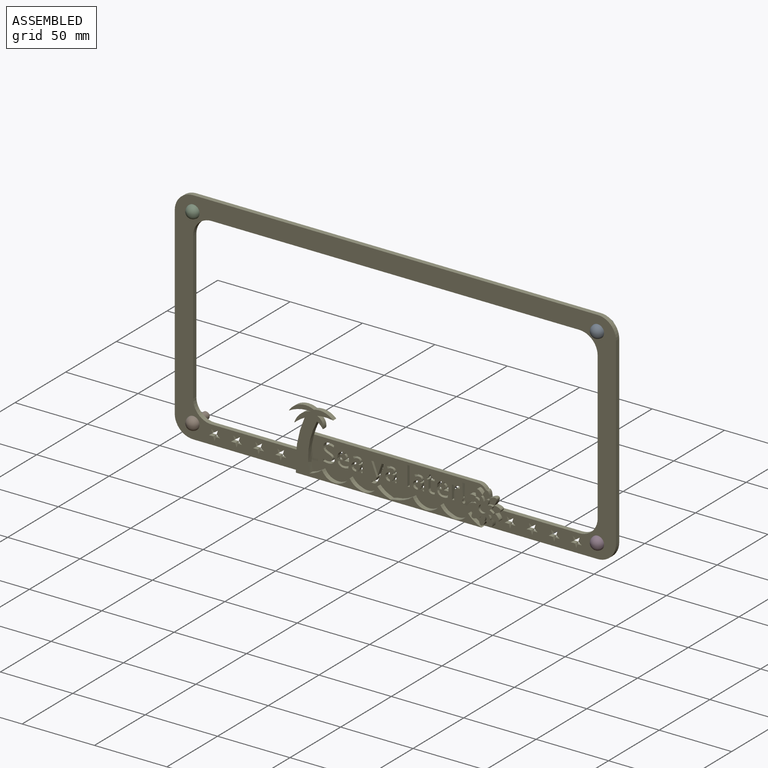
[diagram: assembled view]
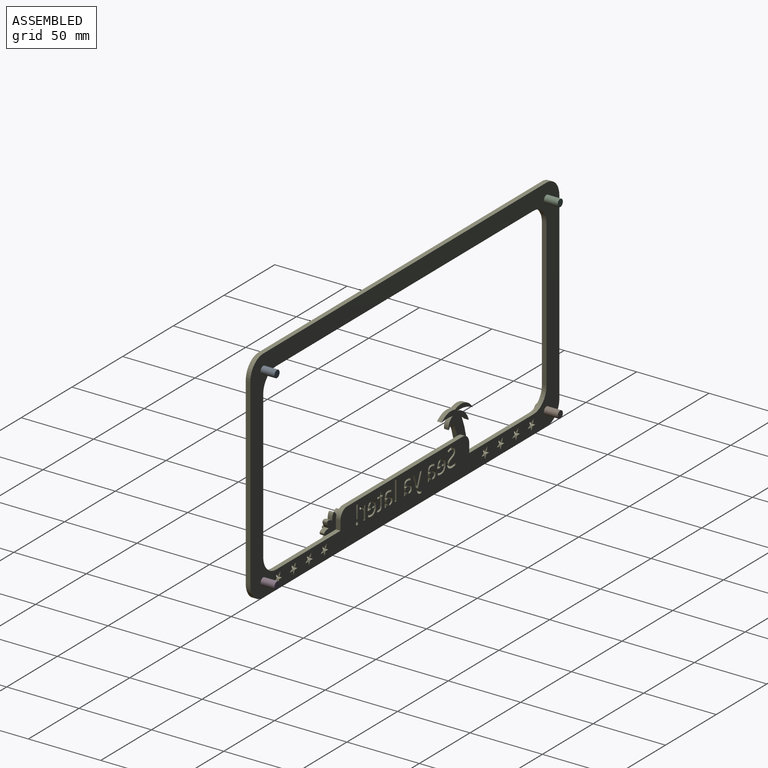
[diagram: assembled view, second angle]
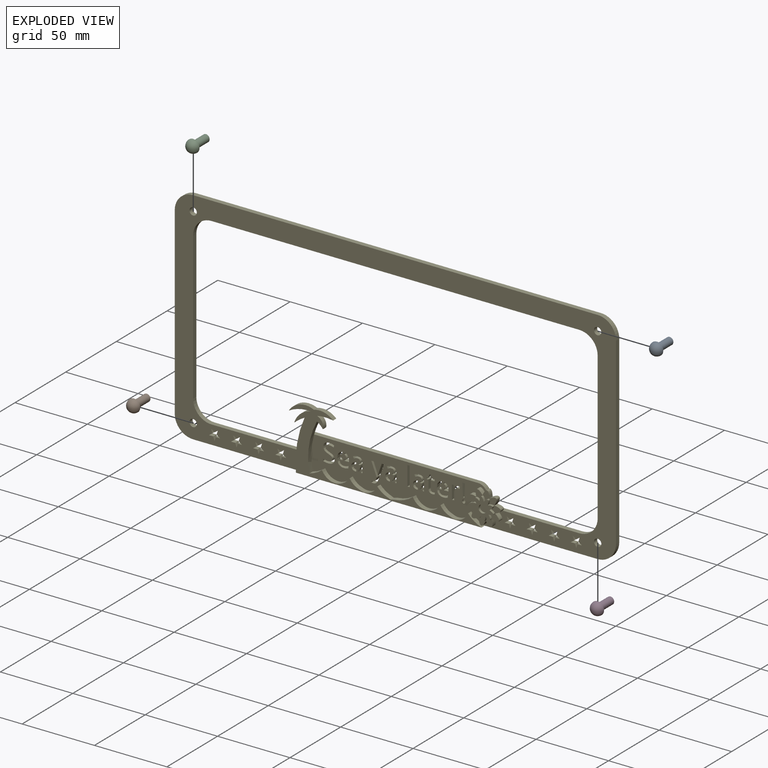
[diagram: exploded view]
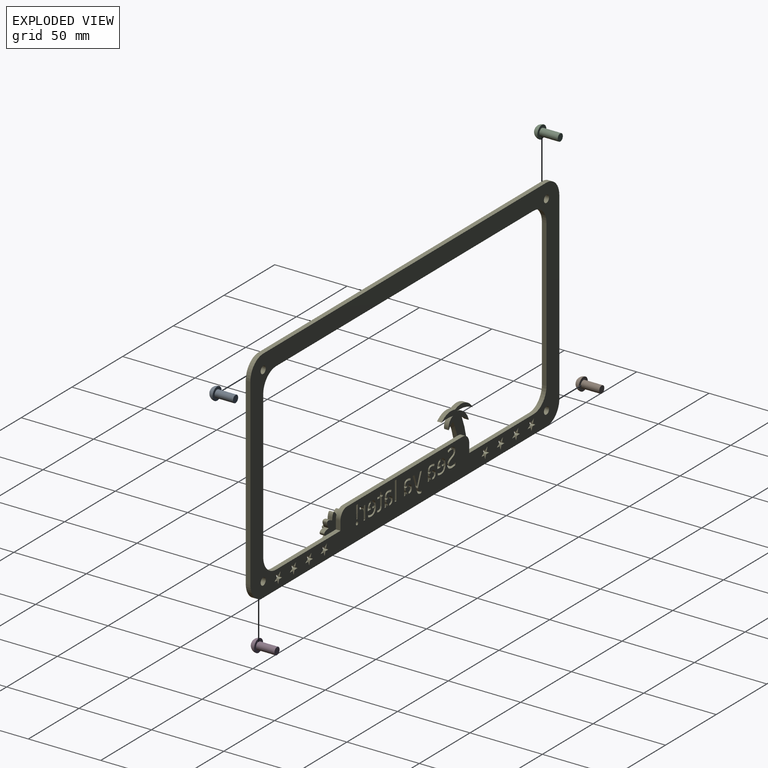
[diagram: exploded view, second angle]
ASSEMBLY  parts=5 mates=4
PART A: 4 faces, bbox 8.9x8.9x17.1 mm
  f0: plane 8.89x8.89mm, normal (0,0,-1), area 41.8mm2, adj f1,f2
  f1: sphere r=4.45mm, area 124.1mm2, adj f0
  f2: cylinder r=2.54mm len=12.7mm, axis (0,0,1), area 202.7mm2, adj f0,f3
  f3: plane 5.08x5.08mm, normal (0,0,-1), area 20.3mm2, adj f2
PART B: same geometry as A
PART C: same geometry as A
PART D: same geometry as A
PART E: 404 faces, bbox 304.8x8x152.4 mm
  f0: plane 304.8x152.4mm, normal (0,-1,0), area 11294mm2, adj f2,f3,f4,f5,f6,f7,f8,f9
  f1: plane 304.8x152.4mm, normal (0,1,0), area 12012.3mm2, adj f3,f4,f5,f6,f7,f8,f9,f10
  f2: cylinder r=50.8mm len=33.85mm, axis (0,1,0), area 110.9mm2, adj f0,f273,f276,f283,f284
  f3: plane 3.22x3.18mm, normal (0,0,1), area 10.2mm2, adj f0,f1,f181,f271
  f4: extruded ~3.18x2.16mm, area 7.9mm2, adj f0,f1,f182,f270
  f5: plane 3.18x1.42mm, normal (0.04,0,-1), area 4.5mm2, adj f0,f1,f165,f261
  f6: extruded ~3.18x0.03mm, area 0.1mm2, adj f0,f1,f170,f259
  f7: plane 3.18x1.58mm, normal (0.04,0,-1), area 5mm2, adj f0,f1,f146,f249
  f8: extruded ~3.18x0.19mm, area 0.6mm2, adj f0,f1,f151,f247
  f9: plane 3.18x1.39mm, normal (0.04,0,-1), area 4.4mm2, adj f0,f1,f46,f236
  f10: plane 3.24x3.18mm, normal (0,0,1), area 10.3mm2, adj f0,f1,f62,f224
  f11: extruded ~3.18x2.18mm, area 7.9mm2, adj f0,f1,f63,f223
  f12: plane 127x3.18mm, normal (1,0,0), area 403.2mm2, adj f0,f1,f13,f33
  f13: cylinder r=12.7mm len=12.7mm, axis (0,1,0), area 63.3mm2, adj f0,f1,f12,f14
  f14: plane 279.4x3.18mm, normal (0,0,1), area 887.1mm2, adj f0,f1,f13,f15
  f15: cylinder r=12.7mm len=12.7mm, axis (0,1,0), area 63.3mm2, adj f0,f1,f14,f16
  f16: plane 127x3.18mm, normal (-1,0,0), area 403.2mm2, adj f0,f1,f15,f17
  f17: cylinder r=12.7mm len=12.7mm, axis (0,1,0), area 63.3mm2, adj f0,f1,f16,f18
  f18: plane 279.4x6.35mm, normal (0,0,-1), area 1294.1mm2, adj f0,f1,f17,f33,f275,f283,f285
  f19: plane 63.5x3.18mm, normal (0,0,1), area 201.6mm2, adj f0,f1,f20,f32,f310
  f20: plane 6.35x3.18mm, normal (1,0,0), area 20.2mm2, adj f1,f19,f21,f310
  f21: cylinder r=6.35mm len=6.35mm, axis (0,1,0), area 31.7mm2, adj f0,f1,f20,f22,f310
  f22: plane 114.3x3.18mm, normal (0,0,1), area 362.9mm2, adj f0,f1,f21,f23,f273
  f23: cylinder r=6.35mm len=6.35mm, axis (0,1,0), area 31.7mm2, adj f1,f22,f24,f273
  f24: plane 6.35x3.18mm, normal (-1,0,0), area 20.2mm2, adj f1,f23,f25,f273
  f25: plane 63.5x3.18mm, normal (0,0,1), area 201.6mm2, adj f0,f1,f24,f26,f273
  f26: cylinder r=12.7mm len=12.7mm, axis (0,1,0), area 63.3mm2, adj f0,f1,f25,f27
  f27: plane 101.6x3.18mm, normal (1,0,0), area 322.6mm2, adj f0,f1,f26,f28
  f28: cylinder r=12.7mm len=12.7mm, axis (0,1,0), area 63.3mm2, adj f0,f1,f27,f29
  f29: plane 254x3.18mm, normal (0,0,-1), area 806.5mm2, adj f0,f1,f28,f30
  f30: cylinder r=12.7mm len=12.7mm, axis (0,1,0), area 63.3mm2, adj f0,f1,f29,f31
  f31: plane 101.6x3.18mm, normal (-1,0,0), area 322.6mm2, adj f0,f1,f30,f32
  f32: cylinder r=12.7mm len=12.7mm, axis (0,1,0), area 63.3mm2, adj f0,f1,f19,f31
  f33: cylinder r=12.7mm len=12.7mm, axis (0,1,0), area 63.3mm2, adj f0,f1,f12,f18
  f34: plane 3.18x1.35mm, normal (0.98,0,0.22), area 4.4mm2, adj f0,f1,f35,f52
  f35: plane 3.18x1.13mm, normal (0,0,1), area 3.6mm2, adj f0,f1,f34,f36
  f36: plane 6.44x3.18mm, normal (-1,0,0), area 20.5mm2, adj f0,f1,f35,f37
  f37: extruded ~3.18x2.41mm, area 8.3mm2, adj f0,f1,f36,f38
  f38: extruded ~3.18x2.55mm, area 8.6mm2, adj f0,f1,f37,f39
  f39: extruded ~3.18x1.67mm, area 5.4mm2, adj f0,f1,f38,f40
  f40: extruded ~3.18x1.56mm, area 5.3mm2, adj f0,f1,f39,f41
  f41: plane 3.18x1.16mm, normal (0.93,0,0.38), area 4mm2, adj f0,f1,f40,f42
  f42: extruded ~3.18x1.25mm, area 4.3mm2, adj f0,f1,f41,f43
  f43: extruded ~3.18x1.42mm, area 4.6mm2, adj f0,f1,f42,f44
  f44: extruded ~3.18x1.49mm, area 5.1mm2, adj f0,f1,f43,f45
  f45: extruded ~3.18x1.59mm, area 5.4mm2, adj f0,f1,f44,f46
  f46: plane 3.18x0.56mm, normal (1,0,0), area 1.8mm2, adj f0,f1,f9,f45
  f47: extruded ~3.31x3.18mm, area 15.5mm2, adj f0,f1,f48,f237
  f48: extruded ~3.18x2.07mm, area 7.2mm2, adj f0,f1,f47,f49
  f49: extruded ~3.18x2.19mm, area 7.5mm2, adj f0,f1,f48,f50
  f50: extruded ~3.18x0.33mm, area 1mm2, adj f0,f1,f49,f235
  f51: extruded ~3.18x1.41mm, area 5.9mm2, adj f0,f1,f52,f234
  f52: plane 3.18x0.07mm, normal (0,0,1), area 0.2mm2, adj f0,f1,f34,f51
  f53: extruded ~3.34x3.18mm, area 11.7mm2, adj f0,f1,f54,f66
  f54: extruded ~3.18x1.63mm, area 5.2mm2, adj f0,f1,f53,f55
  f55: extruded ~3.18x1.47mm, area 4.9mm2, adj f0,f1,f54,f56
  f56: plane 3.18x1.36mm, normal (-1,0,0), area 4.3mm2, adj f0,f1,f55,f57
  f57: extruded ~3.18x1.59mm, area 5.3mm2, adj f0,f1,f56,f58
  f58: extruded ~3.18x1.44mm, area 4.6mm2, adj f0,f1,f57,f59
  f59: extruded ~3.18x2.2mm, area 7.7mm2, adj f0,f1,f58,f60
  f60: extruded ~3.18x2.44mm, area 8.4mm2, adj f0,f1,f59,f61
  f61: plane 3.18x1.97mm, normal (0,0,1), area 6.2mm2, adj f0,f1,f60,f225
  f62: plane 3.18x0.94mm, normal (-1,0,0), area 3mm2, adj f0,f1,f10,f63
  f63: extruded ~3.18x3.11mm, area 10.7mm2, adj f0,f1,f11,f62
  f64: extruded ~3.18x2.44mm, area 9mm2, adj f0,f1,f65,f222
  f65: extruded ~3.62x3.18mm, area 12.3mm2, adj f0,f1,f64,f66
  f66: extruded ~3.55x3.18mm, area 12.2mm2, adj f0,f1,f53,f65
  f67: extruded ~3.18x0.87mm, area 3mm2, adj f0,f1,f68,f74
  f68: extruded ~3.18x0.89mm, area 3mm2, adj f0,f1,f67,f69
  f69: extruded ~3.18x0.81mm, area 2.8mm2, adj f0,f1,f68,f70
  f70: extruded ~3.18x0.81mm, area 2.9mm2, adj f0,f1,f69,f71
  f71: extruded ~3.18x0.88mm, area 3mm2, adj f0,f1,f70,f72
  f72: extruded ~3.18x0.87mm, area 3mm2, adj f0,f1,f71,f73
  f73: extruded ~3.18x0.81mm, area 2.9mm2, adj f0,f1,f72,f74
  f74: extruded ~3.18x0.81mm, area 2.8mm2, adj f0,f1,f67,f73
  f75: plane 3.18x1.01mm, normal (0,0,1), area 3.2mm2, adj f0,f1,f76,f78
  f76: plane 9.04x3.18mm, normal (-1,0,0.05), area 28.7mm2, adj f0,f1,f75,f77
  f77: plane 3.18x1.89mm, normal (0,0,-1), area 6mm2, adj f0,f1,f76,f78
  f78: plane 9.04x3.18mm, normal (1,0,0.05), area 28.7mm2, adj f0,f1,f75,f77
  f79: extruded ~3.18x1.11mm, area 3.5mm2, adj f0,f1,f80,f92
  f80: extruded ~3.18x1.61mm, area 5.4mm2, adj f0,f1,f79,f81
  f81: extruded ~3.18x1.42mm, area 6.1mm2, adj f0,f1,f80,f82
  f82: plane 3.18x0.07mm, normal (0,0,-1), area 0.2mm2, adj f0,f1,f81,f83
  f83: plane 3.18x1.73mm, normal (-1,0,-0.1), area 5.5mm2, adj f0,f1,f82,f84
  f84: plane 3.18x1.27mm, normal (0,0,-1), area 4mm2, adj f0,f1,f83,f85
  f85: plane 9.46x3.18mm, normal (1,0,0), area 30mm2, adj f0,f1,f84,f86
  f86: plane 3.18x1.55mm, normal (0,0,1), area 4.9mm2, adj f0,f1,f85,f87
  f87: plane 5.05x3.18mm, normal (-1,0,0), area 16mm2, adj f0,f1,f86,f88
  f88: extruded ~3.18x1.62mm, area 5.3mm2, adj f0,f1,f87,f89
  f89: extruded ~3.18x1.14mm, area 4.9mm2, adj f0,f1,f88,f90
  f90: extruded ~3.18x1.39mm, area 4.7mm2, adj f0,f1,f89,f91
  f91: extruded ~3.18x1.03mm, area 3.3mm2, adj f0,f1,f90,f92
  f92: plane 3.18x1.43mm, normal (-0.99,0,0.13), area 4.6mm2, adj f0,f1,f79,f91
  f93: extruded ~3.18x0.71mm, area 2.3mm2, adj f0,f1,f94,f111
  f94: extruded ~3.18x1.09mm, area 3.9mm2, adj f0,f1,f93,f95
  f95: extruded ~3.18x1.26mm, area 4.3mm2, adj f0,f1,f94,f96
  f96: plane 5.46x3.18mm, normal (-1,0,0), area 17.3mm2, adj f0,f1,f95,f97
  f97: plane 3.18x2.73mm, normal (0,0,1), area 8.7mm2, adj f0,f1,f96,f98
  f98: plane 3.18x1.2mm, normal (-1,0,0), area 3.8mm2, adj f0,f1,f97,f99
  f99: plane 3.18x2.73mm, normal (0,0,-1), area 8.7mm2, adj f0,f1,f98,f100
  f100: plane 3.18x2.17mm, normal (-1,0,0), area 6.9mm2, adj f0,f1,f99,f101
  f101: plane 3.18x0.92mm, normal (0,0,-1), area 2.9mm2, adj f0,f1,f100,f102
  f102: plane 3.18x2.01mm, normal (0.96,0,-0.29), area 6.7mm2, adj f0,f1,f101,f103
  f103: plane 3.18x1.35mm, normal (0.42,0,-0.91), area 4.7mm2, adj f0,f1,f102,f104
  f104: plane 3.18x0.74mm, normal (1,0,0), area 2.4mm2, adj f0,f1,f103,f105
  f105: plane 3.18x1.34mm, normal (0,0,1), area 4.2mm2, adj f0,f1,f104,f106
  f106: plane 5.5x3.18mm, normal (1,0,0), area 17.5mm2, adj f0,f1,f105,f107
  f107: extruded ~3.18x2.92mm, area 14.7mm2, adj f0,f1,f106,f108
  f108: extruded ~3.18x0.92mm, area 2.9mm2, adj f0,f1,f107,f109
  f109: extruded ~3.18x0.67mm, area 2.2mm2, adj f0,f1,f108,f110
  f110: plane 3.18x1.19mm, normal (-1,0,0), area 3.8mm2, adj f0,f1,f109,f111
  f111: extruded ~3.18x0.61mm, area 2mm2, adj f0,f1,f93,f110
  f112: plane 3.18x1.55mm, normal (0,0,1), area 4.9mm2, adj f0,f1,f113,f115
  f113: plane 13.4x3.18mm, normal (-1,0,0), area 42.6mm2, adj f0,f1,f112,f114
  f114: plane 3.18x1.55mm, normal (0,0,-1), area 4.9mm2, adj f0,f1,f113,f115
  f115: plane 13.4x3.18mm, normal (1,0,0), area 42.6mm2, adj f0,f1,f112,f114
  f116: plane 3.18x1.66mm, normal (0,0,-1), area 5.3mm2, adj f0,f1,f117,f133
  f117: plane 9.49x3.81mm, normal (0.93,0,0.37), area 32.5mm2, adj f0,f1,f116,f118
  f118: plane 3.18x1.26mm, normal (0.93,0,-0.37), area 4.3mm2, adj f0,f1,f117,f119
  f119: extruded ~3.18x1.26mm, area 4.9mm2, adj f0,f1,f118,f120
  f120: extruded ~3.18x1.26mm, area 4.3mm2, adj f0,f1,f119,f121
  f121: extruded ~3.18x1.03mm, area 3.3mm2, adj f0,f1,f120,f122
  f122: plane 3.18x1.23mm, normal (1,0,0), area 3.9mm2, adj f0,f1,f121,f123
  f123: extruded ~3.18x1.28mm, area 4.1mm2, adj f0,f1,f122,f124
  f124: extruded ~3.18x2.02mm, area 6.9mm2, adj f0,f1,f123,f125
  f125: extruded ~3.18x2.25mm, area 8.5mm2, adj f0,f1,f124,f126
  f126: plane 10.77x4.08mm, normal (-0.94,0,0.35), area 36.5mm2, adj f0,f1,f125,f127
  f127: plane 3.18x1.67mm, normal (0,0,-1), area 5.3mm2, adj f0,f1,f126,f128
  f128: plane 5.37x3.18mm, normal (0.94,0,-0.34), area 18.1mm2, adj f0,f1,f127,f129
  f129: extruded ~3.18x1.4mm, area 4.7mm2, adj f0,f1,f128,f130
  f130: extruded ~3.18x1.19mm, area 3.9mm2, adj f0,f1,f129,f131
  f131: plane 3.18x0.07mm, normal (0,0,-1), area 0.2mm2, adj f0,f1,f130,f132
  f132: extruded ~3.18x2.57mm, area 8.6mm2, adj f0,f1,f131,f133
  f133: plane 5.38x3.18mm, normal (-0.93,0,-0.35), area 18.3mm2, adj f0,f1,f116,f132
  f134: plane 3.18x1.35mm, normal (0.98,0,0.22), area 4.4mm2, adj f0,f1,f135,f152
  f135: plane 3.18x1.13mm, normal (0,0,1), area 3.6mm2, adj f0,f1,f134,f136
  f136: plane 6.44x3.18mm, normal (-1,0,0), area 20.5mm2, adj f0,f1,f135,f137
  f137: extruded ~3.18x2.41mm, area 8.3mm2, adj f0,f1,f136,f138
  f138: extruded ~3.18x2.55mm, area 8.6mm2, adj f0,f1,f137,f139
  f139: extruded ~3.18x1.67mm, area 5.4mm2, adj f0,f1,f138,f140
  f140: extruded ~3.18x1.56mm, area 5.3mm2, adj f0,f1,f139,f141
  f141: plane 3.18x1.16mm, normal (0.93,0,0.38), area 4mm2, adj f0,f1,f140,f142
  f142: extruded ~3.18x1.25mm, area 4.3mm2, adj f0,f1,f141,f143
  f143: extruded ~3.18x1.42mm, area 4.6mm2, adj f0,f1,f142,f144
  f144: extruded ~3.18x1.49mm, area 5.1mm2, adj f0,f1,f143,f145
  f145: extruded ~3.18x1.59mm, area 5.4mm2, adj f0,f1,f144,f146
  f146: plane 3.18x0.56mm, normal (1,0,0), area 1.8mm2, adj f0,f1,f7,f145
  f147: extruded ~3.18x3.12mm, area 14.9mm2, adj f0,f1,f148,f250
  f148: extruded ~3.18x2.07mm, area 7.2mm2, adj f0,f1,f147,f149
  f149: extruded ~3.18x2.19mm, area 7.5mm2, adj f0,f1,f148,f150
  f150: extruded ~3.18x0.14mm, area 0.4mm2, adj f0,f1,f149,f248
  f151: extruded ~3.18x1.41mm, area 5.9mm2, adj f0,f1,f8,f152
  f152: plane 3.18x0.07mm, normal (0,0,1), area 0.2mm2, adj f0,f1,f134,f151
  f153: plane 3.18x1.35mm, normal (0.98,0,0.22), area 4.4mm2, adj f0,f1,f154,f171
  f154: plane 3.18x1.13mm, normal (0,0,1), area 3.6mm2, adj f0,f1,f153,f155
  f155: plane 6.44x3.18mm, normal (-1,0,0), area 20.5mm2, adj f0,f1,f154,f156
  f156: extruded ~3.18x2.41mm, area 8.3mm2, adj f0,f1,f155,f157
  f157: extruded ~3.18x2.55mm, area 8.6mm2, adj f0,f1,f156,f158
  f158: extruded ~3.18x1.67mm, area 5.4mm2, adj f0,f1,f157,f159
  f159: extruded ~3.18x1.56mm, area 5.3mm2, adj f0,f1,f158,f160
  f160: plane 3.18x1.16mm, normal (0.93,0,0.38), area 4mm2, adj f0,f1,f159,f161
  f161: extruded ~3.18x1.25mm, area 4.3mm2, adj f0,f1,f160,f162
  f162: extruded ~3.18x1.42mm, area 4.6mm2, adj f0,f1,f161,f163
  f163: extruded ~3.18x1.49mm, area 5.1mm2, adj f0,f1,f162,f164
  f164: extruded ~3.18x1.59mm, area 5.4mm2, adj f0,f1,f163,f165
  f165: plane 3.18x0.56mm, normal (1,0,0), area 1.8mm2, adj f0,f1,f5,f164
  f166: extruded ~3.28x3.18mm, area 15.5mm2, adj f0,f1,f167,f262
  f167: extruded ~3.18x2.07mm, area 7.2mm2, adj f0,f1,f166,f168
  f168: extruded ~3.18x2.19mm, area 7.5mm2, adj f0,f1,f167,f169
  f169: extruded ~3.18x0.3mm, area 1mm2, adj f0,f1,f168,f260
  f170: extruded ~3.18x1.41mm, area 5.9mm2, adj f0,f1,f6,f171
  f171: plane 3.18x0.07mm, normal (0,0,1), area 0.2mm2, adj f0,f1,f153,f170
  f172: extruded ~3.34x3.18mm, area 11.7mm2, adj f0,f1,f173,f185
  f173: extruded ~3.18x1.63mm, area 5.2mm2, adj f0,f1,f172,f174
  f174: extruded ~3.18x1.47mm, area 4.9mm2, adj f0,f1,f173,f175
  f175: plane 3.18x1.36mm, normal (-1,0,0), area 4.3mm2, adj f0,f1,f174,f176
  f176: extruded ~3.18x1.59mm, area 5.3mm2, adj f0,f1,f175,f177
  f177: extruded ~3.18x1.44mm, area 4.6mm2, adj f0,f1,f176,f178
  f178: extruded ~3.18x2.2mm, area 7.7mm2, adj f0,f1,f177,f179
  f179: extruded ~3.18x2.44mm, area 8.4mm2, adj f0,f1,f178,f180
  f180: plane 3.18x1.82mm, normal (0,0,1), area 5.8mm2, adj f0,f1,f179,f272
  f181: plane 3.18x0.94mm, normal (-1,0,0), area 3mm2, adj f0,f1,f3,f182
  f182: extruded ~3.18x3.11mm, area 10.7mm2, adj f0,f1,f4,f181
  f183: extruded ~3.18x2.29mm, area 8.5mm2, adj f0,f1,f184,f269
  f184: extruded ~3.62x3.18mm, area 12.3mm2, adj f0,f1,f183,f185
  f185: extruded ~3.55x3.18mm, area 12.2mm2, adj f0,f1,f172,f184
  f186: extruded ~3.18x2.59mm, area 9.4mm2, adj f0,f1,f187,f211
  f187: extruded ~3.18x1.51mm, area 5mm2, adj f0,f1,f186,f188
  f188: extruded ~3.18x1.12mm, area 4.8mm2, adj f0,f1,f187,f189
  f189: extruded ~3.18x2.09mm, area 7.4mm2, adj f0,f1,f188,f190
  f190: extruded ~3.18x1.72mm, area 6mm2, adj f0,f1,f189,f191
  f191: extruded ~3.18x0.79mm, area 3.5mm2, adj f0,f1,f190,f192
  f192: extruded ~3.18x1.03mm, area 3.4mm2, adj f0,f1,f191,f193
  f193: extruded ~3.18x1.35mm, area 4.9mm2, adj f0,f1,f192,f194
  f194: extruded ~3.18x1.75mm, area 5.9mm2, adj f0,f1,f193,f195
  f195: extruded ~3.18x3.02mm, area 9.9mm2, adj f0,f1,f194,f196
  f196: plane 3.18x1.36mm, normal (-0.94,0,0.34), area 4.6mm2, adj f0,f1,f195,f197
  f197: extruded ~3.47x3.18mm, area 11.3mm2, adj f0,f1,f196,f198
  f198: extruded ~3.18x2.92mm, area 9.8mm2, adj f0,f1,f197,f199
  f199: extruded ~3.18x2.34mm, area 8.5mm2, adj f0,f1,f198,f200
  f200: extruded ~3.18x2.24mm, area 7.7mm2, adj f0,f1,f199,f201
  f201: extruded ~3.18x2.5mm, area 9.4mm2, adj f0,f1,f200,f202
  f202: extruded ~3.18x1.84mm, area 6.4mm2, adj f0,f1,f201,f203
  f203: extruded ~3.18x0.87mm, area 3.7mm2, adj f0,f1,f202,f204
  f204: extruded ~3.18x1.03mm, area 3.4mm2, adj f0,f1,f203,f205
  f205: extruded ~3.18x1.49mm, area 5.5mm2, adj f0,f1,f204,f206
  f206: extruded ~3.18x2.13mm, area 7.1mm2, adj f0,f1,f205,f207
  f207: extruded ~3.18x1.78mm, area 5.7mm2, adj f0,f1,f206,f208
  f208: extruded ~3.18x1.75mm, area 5.8mm2, adj f0,f1,f207,f209
  f209: plane 3.18x1.52mm, normal (1,0,0), area 4.8mm2, adj f0,f1,f208,f210
  f210: extruded ~3.46x3.18mm, area 11.2mm2, adj f0,f1,f209,f211
  f211: extruded ~3.31x3.18mm, area 11.1mm2, adj f0,f1,f186,f210
  f212: cylinder r=2.54mm len=5.08mm, axis (0,-1,0), area 50.7mm2, adj f0,f1
  f213: cylinder r=2.54mm len=5.08mm, axis (0,-1,0), area 50.7mm2, adj f0,f1
  f214: cylinder r=2.54mm len=5.08mm, axis (0,-1,0), area 50.7mm2, adj f0,f1
  f215: cylinder r=2.54mm len=5.08mm, axis (0,-1,0), area 50.7mm2, adj f0,f1
  f216: plane 3.18x1.61mm, normal (0,0,-1), area 5.1mm2, adj f0,f1,f220,f224
  f217: extruded ~3.18x1mm, area 3.8mm2, adj f0,f1,f220,f223
  f218: extruded ~3.18x1.99mm, area 6.9mm2, adj f0,f1,f219,f221
  f219: plane 3.18x1.93mm, normal (0,0,-1), area 6.1mm2, adj f0,f1,f218,f225
  f220: extruded ~3.18x2.01mm, area 6.8mm2, adj f0,f1,f216,f217
  f221: extruded ~3.18x1.17mm, area 4.3mm2, adj f0,f1,f218,f222
  f222: plane 3.18x1.29mm, normal (-1,0,0), area 4.1mm2, adj f0,f1,f64,f221
  f223: plane 3.18x1.3mm, normal (1,0,0), area 4.1mm2, adj f0,f1,f11,f217
  f224: plane 3.18x1.23mm, normal (1,0,0), area 3.9mm2, adj f0,f1,f10,f216
  f225: plane 3.18x1.23mm, normal (-1,0,0), area 3.9mm2, adj f0,f1,f61,f219
  f226: plane 3.18x1.37mm, normal (-0.04,0,1), area 4.4mm2, adj f0,f1,f229,f236
  f227: extruded ~3.18x0.63mm, area 2.4mm2, adj f0,f1,f228,f234
  f228: extruded ~3.18x1.99mm, area 7mm2, adj f0,f1,f227,f229
  f229: plane 3.18x0.85mm, normal (1,0,0), area 2.7mm2, adj f0,f1,f226,f228
  f230: extruded ~3.18x0.95mm, area 3.2mm2, adj f0,f1,f231,f237
  f231: extruded ~3.18x1.44mm, area 5.4mm2, adj f0,f1,f230,f232
  f232: extruded ~3.18x1.14mm, area 4mm2, adj f0,f1,f231,f233
  f233: extruded ~3.18x1.25mm, area 4.2mm2, adj f0,f1,f232,f235
  f234: plane 3.18x1.21mm, normal (1,0,0), area 3.9mm2, adj f0,f1,f51,f227
  f235: plane 3.18x1.24mm, normal (-1,0,0), area 3.9mm2, adj f0,f1,f50,f233
  f236: plane 3.18x1.08mm, normal (1,0,0), area 3.4mm2, adj f0,f1,f9,f226
  f237: plane 3.18x1.14mm, normal (-1,0,0), area 3.6mm2, adj f0,f1,f47,f230
  f238: extruded ~3.18x0.17mm, area 0.5mm2, adj f0,f1,f242,f249
  f239: extruded ~3.18x0.82mm, area 3.1mm2, adj f0,f1,f240,f247
  f240: extruded ~3.18x1.99mm, area 7mm2, adj f0,f1,f239,f241
  f241: plane 3.18x0.85mm, normal (1,0,0), area 2.7mm2, adj f0,f1,f240,f242
  f242: plane 3.18x1.4mm, normal (-0.04,0,1), area 4.4mm2, adj f0,f1,f238,f241
  f243: extruded ~3.18x0.77mm, area 2.6mm2, adj f0,f1,f244,f250
  f244: extruded ~3.18x1.44mm, area 5.4mm2, adj f0,f1,f243,f245
  f245: extruded ~3.18x1.14mm, area 4mm2, adj f0,f1,f244,f246
  f246: extruded ~3.18x1.06mm, area 3.6mm2, adj f0,f1,f245,f248
  f247: plane 3.18x1.21mm, normal (1,0,0), area 3.8mm2, adj f0,f1,f8,f239
  f248: plane 3.18x1.26mm, normal (-1,0,0), area 4mm2, adj f0,f1,f150,f246
  f249: plane 3.18x1.09mm, normal (1,0,0), area 3.4mm2, adj f0,f1,f7,f238
  f250: plane 3.18x1.16mm, normal (-1,0,0), area 3.7mm2, adj f0,f1,f147,f243
  f251: extruded ~3.18x0.65mm, area 2.5mm2, adj f0,f1,f252,f259
  f252: extruded ~3.18x1.99mm, area 7mm2, adj f0,f1,f251,f253
  f253: plane 3.18x0.85mm, normal (1,0,0), area 2.7mm2, adj f0,f1,f252,f254
  f254: plane 3.18x1.4mm, normal (-0.04,0,1), area 4.4mm2, adj f0,f1,f253,f261
  f255: extruded ~3.18x0.93mm, area 3.2mm2, adj f0,f1,f256,f262
  f256: extruded ~3.18x1.44mm, area 5.4mm2, adj f0,f1,f255,f257
  f257: extruded ~3.18x1.14mm, area 4mm2, adj f0,f1,f256,f258
  f258: extruded ~3.18x1.22mm, area 4.2mm2, adj f0,f1,f257,f260
  f259: plane 3.18x1.21mm, normal (1,0,0), area 3.9mm2, adj f0,f1,f6,f251
  f260: plane 3.18x1.25mm, normal (-1,0,0), area 4mm2, adj f0,f1,f169,f258
  f261: plane 3.18x1.08mm, normal (1,0,0), area 3.4mm2, adj f0,f1,f5,f254
  f262: plane 3.18x1.14mm, normal (-1,0,0), area 3.6mm2, adj f0,f1,f166,f255
  f263: plane 3.18x1.6mm, normal (0,0,-1), area 5.1mm2, adj f0,f1,f267,f271
  f264: extruded ~3.18x0.98mm, area 3.7mm2, adj f0,f1,f267,f270
  f265: extruded ~3.18x1.99mm, area 6.9mm2, adj f0,f1,f266,f268
  f266: plane 3.18x1.78mm, normal (0,0,-1), area 5.6mm2, adj f0,f1,f265,f272
  f267: extruded ~3.18x2.01mm, area 6.8mm2, adj f0,f1,f263,f264
  f268: extruded ~3.18x1.01mm, area 3.8mm2, adj f0,f1,f265,f269
  f269: plane 3.18x1.3mm, normal (-1,0,0), area 4.1mm2, adj f0,f1,f183,f268
  f270: plane 3.18x1.31mm, normal (1,0,0), area 4.1mm2, adj f0,f1,f4,f264
  f271: plane 3.18x1.23mm, normal (1,0,0), area 3.9mm2, adj f0,f1,f3,f263
  f272: plane 3.18x1.23mm, normal (-1,0,0), area 3.9mm2, adj f0,f1,f180,f266
  f273: plane 31.22x30.6mm, normal (0,1,0), area 268.4mm2, adj f2,f22,f23,f24,f25,f274,f275,f276
  f274: cylinder r=32.28mm len=7.14mm, axis (0,1,0), area 27.6mm2, adj f273,f275,f282,f283
  f275: cylinder r=76.2mm len=35.84mm, axis (0,1,0), area 116.5mm2, adj f0,f18,f273,f274,f283
  f276: cylinder r=13.32mm len=4.06mm, axis (0,1,0), area 17.7mm2, adj f2,f273,f277,f283
  f277: cylinder r=6.2mm len=7.34mm, axis (0,1,0), area 29.2mm2, adj f273,f276,f278,f283
  f278: cylinder r=28.19mm len=11.09mm, axis (0,1,0), area 35.4mm2, adj f273,f277,f279,f283
  f279: cylinder r=13.4mm len=13.23mm, axis (0,1,0), area 45.3mm2, adj f273,f278,f280,f283
  f280: cylinder r=13.55mm len=17.37mm, axis (0,1,0), area 63mm2, adj f273,f279,f281,f283
  f281: cylinder r=25.51mm len=15.2mm, axis (0,1,0), area 50.3mm2, adj f273,f280,f282,f283
  f282: cylinder r=14.6mm len=11.47mm, axis (0,1,0), area 50.9mm2, adj f273,f274,f281,f283
  f283: plane 133.09x43.92mm, normal (0,-1,0), area 748.9mm2, adj f2,f18,f274,f275,f276,f277,f278,f279
  f284: cylinder r=23.24mm len=8.72mm, axis (0,1,0), area 31.2mm2, adj f0,f2,f283,f298
  f285: plane 3.18x2.93mm, normal (0.41,0,0.91), area 10.2mm2, adj f0,f18,f283,f286
  f286: cylinder r=18.86mm len=6.35mm, axis (0,1,0), area 26mm2, adj f0,f283,f285,f287
  f287: cylinder r=9.22mm len=12.7mm, axis (0,1,0), area 48.9mm2, adj f0,f283,f286,f288
  f288: cylinder r=11.4mm len=6.35mm, axis (0,1,0), area 26.4mm2, adj f0,f283,f287,f289
  f289: cylinder r=13.07mm len=6.35mm, axis (0,1,0), area 26.3mm2, adj f0,f283,f288,f290
  f290: cylinder r=10.14mm len=12.7mm, axis (0,1,0), area 47.7mm2, adj f0,f283,f289,f291
  f291: cylinder r=23.24mm len=12.7mm, axis (0,1,0), area 44.1mm2, adj f0,f283,f290,f292
  f292: plane 3.18x2.79mm, normal (-0.24,0,0.97), area 9.1mm2, adj f0,f283,f291,f293
  f293: plane 3.18x1.52mm, normal (0.41,0,0.91), area 5.3mm2, adj f0,f283,f292,f294
  f294: cylinder r=18.86mm len=7.62mm, axis (0,1,0), area 29.4mm2, adj f0,f283,f293,f295
  f295: cylinder r=9.22mm len=12.7mm, axis (0,1,0), area 48.9mm2, adj f0,f283,f294,f296
  f296: cylinder r=11.4mm len=6.35mm, axis (0,1,0), area 26.4mm2, adj f0,f283,f295,f297
  f297: cylinder r=13.07mm len=6.35mm, axis (0,1,0), area 26.3mm2, adj f0,f283,f296,f298
  f298: cylinder r=10.14mm len=12.7mm, axis (0,1,0), area 47.7mm2, adj f0,f283,f284,f297
  f299: extruded ~4.82x4.45mm, area 32.2mm2, adj f0,f300,f308,f309,f310
  f300: extruded ~4.96x4.95mm, area 32.2mm2, adj f299,f301,f309,f310
  f301: extruded ~4.79x4.53mm, area 32.2mm2, adj f0,f300,f302,f309,f310
  f302: extruded ~4.89x4.75mm, area 32.2mm2, adj f0,f301,f303,f309
  f303: extruded ~4.92x4.78mm, area 32.2mm2, adj f0,f302,f304,f309
  f304: extruded ~4.82x4.45mm, area 32.2mm2, adj f0,f303,f305,f309
  f305: extruded ~4.96x4.95mm, area 32.2mm2, adj f0,f304,f306,f309
  f306: extruded ~4.79x4.53mm, area 32.2mm2, adj f0,f305,f307,f309
  f307: extruded ~4.89x4.75mm, area 32.2mm2, adj f0,f306,f308,f309
  f308: extruded ~4.92x4.78mm, area 32.2mm2, adj f0,f299,f307,f309
  f309: plane 23.08x22.94mm, normal (0,-1,0), area 189.5mm2, adj f299,f300,f301,f302,f303,f304,f305,f306
  f310: plane 12.08x11.47mm, normal (0,1,0), area 84.6mm2, adj f19,f20,f21,f299,f300,f301
  f311: extruded ~3.36x3.31mm, area 11.6mm2, adj f309,f312,f320,f322
  f312: extruded ~3.22x2.96mm, area 11.6mm2, adj f309,f311,f313,f322
  f313: extruded ~3.38x3.05mm, area 11.6mm2, adj f309,f312,f314,f322
  f314: extruded ~3.39x3.12mm, area 11.6mm2, adj f309,f313,f315,f322
  f315: extruded ~3.13x3mm, area 11.6mm2, adj f309,f314,f316,f322
  f316: extruded ~3.36x3.31mm, area 11.6mm2, adj f309,f315,f317,f322
  f317: extruded ~3.22x2.96mm, area 11.6mm2, adj f309,f316,f318,f322
  f318: extruded ~3.38x3.05mm, area 11.6mm2, adj f309,f317,f319,f322
  f319: extruded ~3.39x3.12mm, area 11.6mm2, adj f309,f318,f320,f322
  f320: extruded ~3.13x3mm, area 11.6mm2, adj f309,f311,f319,f322
  f321: cylinder r=2.71mm len=5.41mm, axis (0,1,0), area 28.1mm2, adj f322,f323
  f322: plane 15.14x14.96mm, normal (0,-1,0), area 109.8mm2, adj f311,f312,f313,f314,f315,f316,f317,f318
  f323: plane 5.41x5.41mm, normal (0,-1,0), area 23mm2, adj f321
  f324: plane 3.18x2.74mm, normal (0.95,0,0.31), area 9.1mm2, adj f0,f1,f325,f333
  f325: plane 3.18x2.33mm, normal (0.59,0,-0.81), area 9.1mm2, adj f0,f1,f324,f326
  f326: plane 3.18x2.88mm, normal (0,0,1), area 9.1mm2, adj f0,f1,f325,f327
  f327: plane 3.18x2.74mm, normal (0.95,0,0.31), area 9.1mm2, adj f0,f1,f326,f328
  f328: plane 3.18x2.74mm, normal (-0.95,0,0.31), area 9.1mm2, adj f0,f1,f327,f329
  f329: plane 3.18x2.88mm, normal (0,0,1), area 9.1mm2, adj f0,f1,f328,f330
  f330: plane 3.18x2.33mm, normal (-0.59,0,-0.81), area 9.1mm2, adj f0,f1,f329,f331
  f331: plane 3.18x2.74mm, normal (-0.95,0,0.31), area 9.1mm2, adj f0,f1,f330,f332
  f332: plane 3.18x2.33mm, normal (0.59,0,-0.81), area 9.1mm2, adj f0,f1,f331,f333
  f333: plane 3.18x2.33mm, normal (-0.59,0,-0.81), area 9.1mm2, adj f0,f1,f324,f332
  f334: plane 3.18x2.33mm, normal (0.59,0,-0.81), area 9.1mm2, adj f0,f1,f335,f343
  f335: plane 3.18x2.33mm, normal (-0.59,0,-0.81), area 9.1mm2, adj f0,f1,f334,f336
  f336: plane 3.18x2.74mm, normal (0.95,0,0.31), area 9.1mm2, adj f0,f1,f335,f337
  f337: plane 3.18x2.33mm, normal (0.59,0,-0.81), area 9.1mm2, adj f0,f1,f336,f338
  f338: plane 3.18x2.88mm, normal (0,0,1), area 9.1mm2, adj f0,f1,f337,f339
  f339: plane 3.18x2.74mm, normal (0.95,0,0.31), area 9.1mm2, adj f0,f1,f338,f340
  f340: plane 3.18x2.74mm, normal (-0.95,0,0.31), area 9.1mm2, adj f0,f1,f339,f341
  f341: plane 3.18x2.88mm, normal (0,0,1), area 9.1mm2, adj f0,f1,f340,f342
  f342: plane 3.18x2.33mm, normal (-0.59,0,-0.81), area 9.1mm2, adj f0,f1,f341,f343
  f343: plane 3.18x2.74mm, normal (-0.95,0,0.31), area 9.1mm2, adj f0,f1,f334,f342
  f344: plane 3.18x2.74mm, normal (0.95,0,0.31), area 9.1mm2, adj f0,f1,f345,f353
  f345: plane 3.18x2.33mm, normal (0.59,0,-0.81), area 9.1mm2, adj f0,f1,f344,f346
  f346: plane 3.18x2.88mm, normal (0,0,1), area 9.1mm2, adj f0,f1,f345,f347
  f347: plane 3.18x2.74mm, normal (0.95,0,0.31), area 9.1mm2, adj f0,f1,f346,f348
  f348: plane 3.18x2.74mm, normal (-0.95,0,0.31), area 9.1mm2, adj f0,f1,f347,f349
  f349: plane 3.18x2.88mm, normal (0,0,1), area 9.1mm2, adj f0,f1,f348,f350
  f350: plane 3.18x2.33mm, normal (-0.59,0,-0.81), area 9.1mm2, adj f0,f1,f349,f351
  f351: plane 3.18x2.74mm, normal (-0.95,0,0.31), area 9.1mm2, adj f0,f1,f350,f352
  f352: plane 3.18x2.33mm, normal (0.59,0,-0.81), area 9.1mm2, adj f0,f1,f351,f353
  f353: plane 3.18x2.33mm, normal (-0.59,0,-0.81), area 9.1mm2, adj f0,f1,f344,f352
  f354: plane 3.18x2.88mm, normal (0,0,1), area 9.1mm2, adj f0,f1,f355,f363
  f355: plane 3.18x2.74mm, normal (0.95,0,0.31), area 9.1mm2, adj f0,f1,f354,f356
  f356: plane 3.18x2.74mm, normal (-0.95,0,0.31), area 9.1mm2, adj f0,f1,f355,f357
  f357: plane 3.18x2.88mm, normal (0,0,1), area 9.1mm2, adj f0,f1,f356,f358
  f358: plane 3.18x2.33mm, normal (-0.59,0,-0.81), area 9.1mm2, adj f0,f1,f357,f359
  f359: plane 3.18x2.74mm, normal (-0.95,0,0.31), area 9.1mm2, adj f0,f1,f358,f360
  f360: plane 3.18x2.33mm, normal (0.59,0,-0.81), area 9.1mm2, adj f0,f1,f359,f361
  f361: plane 3.18x2.33mm, normal (-0.59,0,-0.81), area 9.1mm2, adj f0,f1,f360,f362
  f362: plane 3.18x2.74mm, normal (0.95,0,0.31), area 9.1mm2, adj f0,f1,f361,f363
  f363: plane 3.18x2.33mm, normal (0.59,0,-0.81), area 9.1mm2, adj f0,f1,f354,f362
  f364: plane 3.18x2.33mm, normal (-0.59,0,-0.81), area 9.1mm2, adj f0,f1,f365,f373
  f365: plane 3.18x2.74mm, normal (-0.95,0,0.31), area 9.1mm2, adj f0,f1,f364,f366
  f366: plane 3.18x2.33mm, normal (0.59,0,-0.81), area 9.1mm2, adj f0,f1,f365,f367
  f367: plane 3.18x2.33mm, normal (-0.59,0,-0.81), area 9.1mm2, adj f0,f1,f366,f368
  f368: plane 3.18x2.74mm, normal (0.95,0,0.31), area 9.1mm2, adj f0,f1,f367,f369
  f369: plane 3.18x2.33mm, normal (0.59,0,-0.81), area 9.1mm2, adj f0,f1,f368,f370
  f370: plane 3.18x2.88mm, normal (0,0,1), area 9.1mm2, adj f0,f1,f369,f371
  f371: plane 3.18x2.74mm, normal (0.95,0,0.31), area 9.1mm2, adj f0,f1,f370,f372
  f372: plane 3.18x2.74mm, normal (-0.95,0,0.31), area 9.1mm2, adj f0,f1,f371,f373
  f373: plane 3.18x2.88mm, normal (0,0,1), area 9.1mm2, adj f0,f1,f364,f372
  f374: plane 3.18x2.74mm, normal (-0.95,0,0.31), area 9.1mm2, adj f0,f1,f375,f383
  f375: plane 3.18x2.88mm, normal (0,0,1), area 9.1mm2, adj f0,f1,f374,f376
  f376: plane 3.18x2.33mm, normal (-0.59,0,-0.81), area 9.1mm2, adj f0,f1,f375,f377
  f377: plane 3.18x2.74mm, normal (-0.95,0,0.31), area 9.1mm2, adj f0,f1,f376,f378
  f378: plane 3.18x2.33mm, normal (0.59,0,-0.81), area 9.1mm2, adj f0,f1,f377,f379
  f379: plane 3.18x2.33mm, normal (-0.59,0,-0.81), area 9.1mm2, adj f0,f1,f378,f380
  f380: plane 3.18x2.74mm, normal (0.95,0,0.31), area 9.1mm2, adj f0,f1,f379,f381
  f381: plane 3.18x2.33mm, normal (0.59,0,-0.81), area 9.1mm2, adj f0,f1,f380,f382
  f382: plane 3.18x2.88mm, normal (0,0,1), area 9.1mm2, adj f0,f1,f381,f383
  f383: plane 3.18x2.74mm, normal (0.95,0,0.31), area 9.1mm2, adj f0,f1,f374,f382
  f384: plane 3.18x2.33mm, normal (0.59,0,-0.81), area 9.1mm2, adj f0,f1,f385,f393
  f385: plane 3.18x2.33mm, normal (-0.59,0,-0.81), area 9.1mm2, adj f0,f1,f384,f386
  f386: plane 3.18x2.74mm, normal (0.95,0,0.31), area 9.1mm2, adj f0,f1,f385,f387
  f387: plane 3.18x2.33mm, normal (0.59,0,-0.81), area 9.1mm2, adj f0,f1,f386,f388
  f388: plane 3.18x2.88mm, normal (0,0,1), area 9.1mm2, adj f0,f1,f387,f389
  f389: plane 3.18x2.74mm, normal (0.95,0,0.31), area 9.1mm2, adj f0,f1,f388,f390
  f390: plane 3.18x2.74mm, normal (-0.95,0,0.31), area 9.1mm2, adj f0,f1,f389,f391
  f391: plane 3.18x2.88mm, normal (0,0,1), area 9.1mm2, adj f0,f1,f390,f392
  f392: plane 3.18x2.33mm, normal (-0.59,0,-0.81), area 9.1mm2, adj f0,f1,f391,f393
  f393: plane 3.18x2.74mm, normal (-0.95,0,0.31), area 9.1mm2, adj f0,f1,f384,f392
  f394: plane 3.18x2.74mm, normal (0.95,0,0.31), area 9.1mm2, adj f0,f1,f395,f403
  f395: plane 3.18x2.33mm, normal (0.59,0,-0.81), area 9.1mm2, adj f0,f1,f394,f396
  f396: plane 3.18x2.88mm, normal (0,0,1), area 9.1mm2, adj f0,f1,f395,f397
  f397: plane 3.18x2.74mm, normal (0.95,0,0.31), area 9.1mm2, adj f0,f1,f396,f398
  f398: plane 3.18x2.74mm, normal (-0.95,0,0.31), area 9.1mm2, adj f0,f1,f397,f399
  f399: plane 3.18x2.88mm, normal (0,0,1), area 9.1mm2, adj f0,f1,f398,f400
  f400: plane 3.18x2.33mm, normal (-0.59,0,-0.81), area 9.1mm2, adj f0,f1,f399,f401
  f401: plane 3.18x2.74mm, normal (-0.95,0,0.31), area 9.1mm2, adj f0,f1,f400,f402
  f402: plane 3.18x2.33mm, normal (0.59,0,-0.81), area 9.1mm2, adj f0,f1,f401,f403
  f403: plane 3.18x2.33mm, normal (-0.59,0,-0.81), area 9.1mm2, adj f0,f1,f394,f402
PLACE A rot(axis=(1,0,0),90deg) t=(139.7,-3.18,66.04)mm
PLACE B rot(axis=(1,0,0),90deg) t=(-139.7,-3.18,-66.04)mm
PLACE C rot(axis=(1,0,0),90deg) t=(-139.7,-3.18,66.04)mm
PLACE D rot(axis=(1,0,0),90deg) t=(139.7,-3.18,-66.04)mm
PLACE E at identity
MATE fastened B.f2 <-> E.f213  axis (0,1,0) through (-139.7,-3.18,-66.04)mm
MATE fastened D.f2 <-> E.f214  axis (0,1,0) through (139.7,-3.18,-66.04)mm
MATE fastened C.f2 <-> E.f212  axis (0,1,0) through (-139.7,-3.18,66.04)mm
MATE fastened A.f2 <-> E.f215  axis (0,1,0) through (139.7,-3.18,66.04)mm
